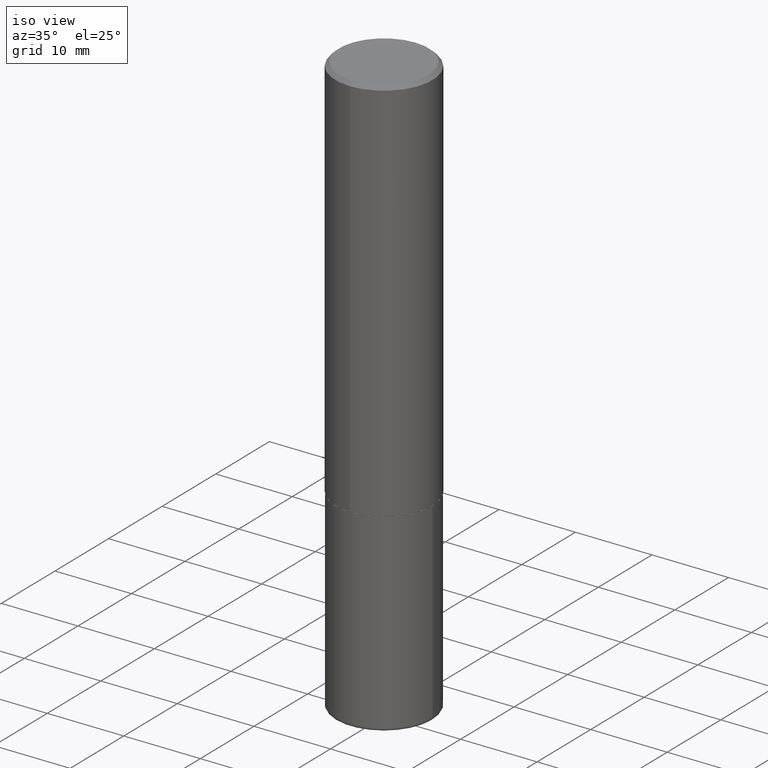
[diagram: clean part render]
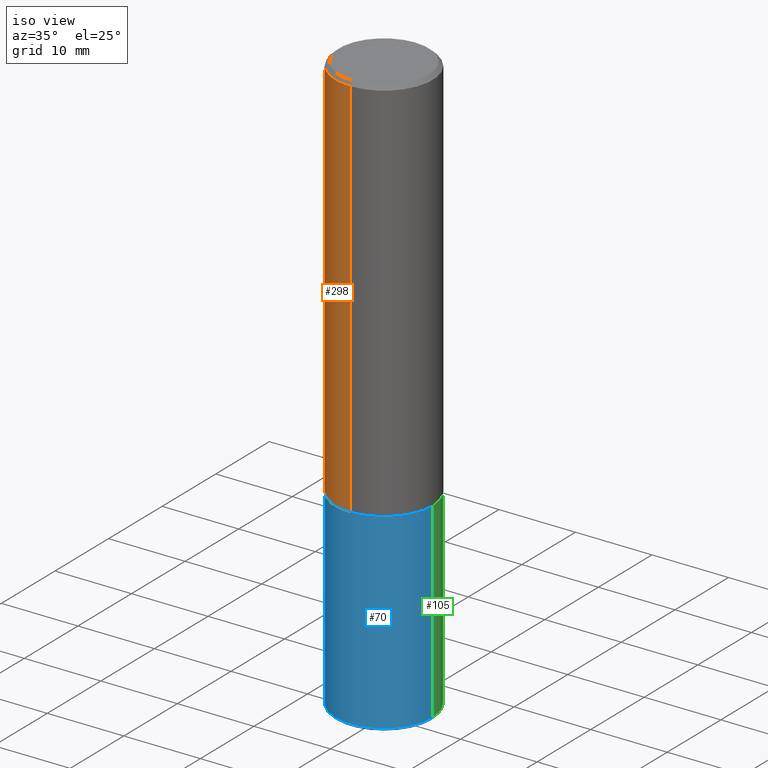
[diagram: same view with three faces highlighted in distinct colors, each labeled with its STEP entity id]
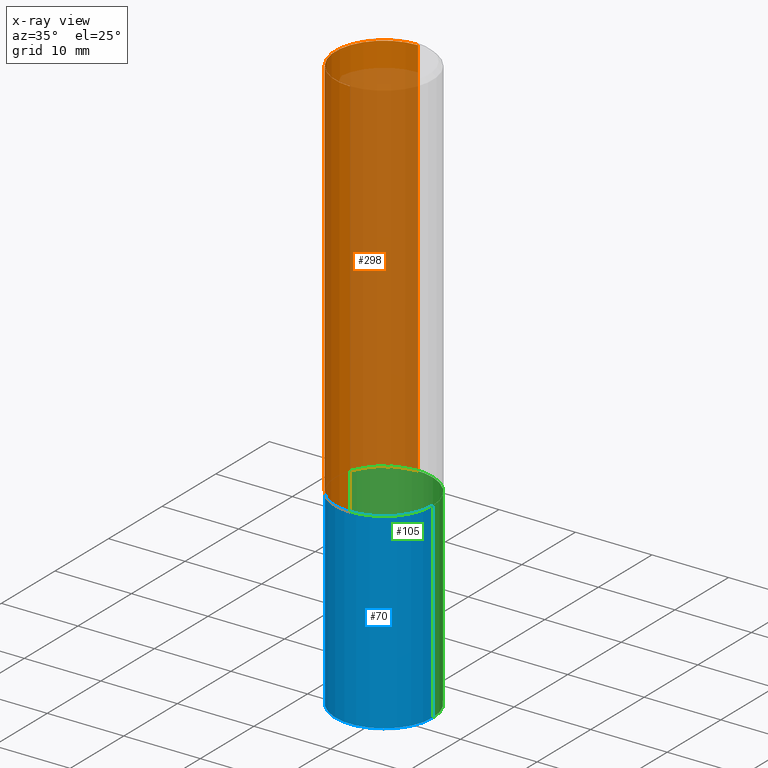
[diagram: x-ray of the same camera — body ghosted, the three highlighted faces saturated]
A machine part, iso view with three faces highlighted in distinct colors.
The next image is the same camera in x-ray (body ghosted, the three faces saturated) — at least one of them is partly hidden behind the body in this view.
Their STEP definitions:

[orange] entity #298 — the highlighted cylindrical surface (partial cylindrical patch) has radius 6.35 mm, axis along (-0, 0, 1).
#12 = ORIENTED_EDGE ( 'NONE', *, *, #339, .F. ) ;
#19 = AXIS2_PLACEMENT_3D ( 'NONE', #128, #397, #96 ) ;
#26 = VECTOR ( 'NONE', #147, 39.37007874015748143 ) ;
#45 = VERTEX_POINT ( 'NONE', #197 ) ;
#53 = CIRCLE ( 'NONE', #114, 0.2500000000000002776 ) ;
#64 = EDGE_CURVE ( 'NONE', #326, #122, #53, .T. ) ;
#72 = VECTOR ( 'NONE', #148, 39.37007874015748143 ) ;
#81 = CARTESIAN_POINT ( 'NONE',  ( -1.745740669421519346E-15, -0.2500000000000072164, -1.998999999999999444 ) ) ;
#85 = FACE_OUTER_BOUND ( 'NONE', #244, .T. ) ;
#86 = EDGE_CURVE ( 'NONE', #326, #322, #284, .T. ) ;
#87 = AXIS2_PLACEMENT_3D ( 'NONE', #109, #275, #412 ) ;
#96 = DIRECTION ( 'NONE',  ( -6.982962677686265922E-15, -1.000000000000000000, 3.483106191921935554E-15 ) ) ;
#109 = CARTESIAN_POINT ( 'NONE',  ( 0.000000000000000000, 0.000000000000000000, 0.000000000000000000 ) ) ;
#114 = AXIS2_PLACEMENT_3D ( 'NONE', #393, #384, #171 ) ;
#116 = EDGE_CURVE ( 'NONE', #122, #45, #338, .T. ) ;
#122 = VERTEX_POINT ( 'NONE', #81 ) ;
#128 = CARTESIAN_POINT ( 'NONE',  ( 4.893184102380074708E-31, -6.979745576130022269E-17, -0.02000000000000005593 ) ) ;
#135 = CARTESIAN_POINT ( 'NONE',  ( 1.776356839400276497E-15, 0.2499999999999933109, -1.999000000000000998 ) ) ;
#147 = DIRECTION ( 'NONE',  ( -2.446592051190030838E-29, 3.489872788065001841E-15, 1.000000000000000000 ) ) ;
#148 = DIRECTION ( 'NONE',  ( -2.446592051190030838E-29, 3.489872788065001841E-15, 1.000000000000000000 ) ) ;
#171 = DIRECTION ( 'NONE',  ( -6.982962677686265922E-15, -1.000000000000000000, 3.278217592397112312E-15 ) ) ;
#197 = CARTESIAN_POINT ( 'NONE',  ( -1.715124499442882299E-15, -0.2500000000000000555, -0.01999999999999918510 ) ) ;
#244 = EDGE_LOOP ( 'NONE', ( #312, #287, #245, #12 ) ) ;
#245 = ORIENTED_EDGE ( 'NONE', *, *, #116, .T. ) ;
#275 = DIRECTION ( 'NONE',  ( -2.446592051190030557E-29, 3.489872788065002235E-15, 1.000000000000000000 ) ) ;
#278 = CARTESIAN_POINT ( 'NONE',  ( -1.745740669421567467E-15, -0.2500000000000001110, 8.724681970162509532E-16 ) ) ;
#284 = LINE ( 'NONE', #300, #72 ) ;
#287 = ORIENTED_EDGE ( 'NONE', *, *, #64, .T. ) ;
#298 = ADVANCED_FACE ( 'NONE', ( #85 ), #315, .T. ) ;
#300 = CARTESIAN_POINT ( 'NONE',  ( 1.776356839400251254E-15, 0.2500000000000001110, -8.724681970162509532E-16 ) ) ;
#312 = ORIENTED_EDGE ( 'NONE', *, *, #86, .F. ) ;
#315 = CYLINDRICAL_SURFACE ( 'NONE', #87, 0.2500000000000001110 ) ;
#322 = VERTEX_POINT ( 'NONE', #368 ) ;
#326 = VERTEX_POINT ( 'NONE', #135 ) ;
#338 = LINE ( 'NONE', #278, #26 ) ;
#339 = EDGE_CURVE ( 'NONE', #322, #45, #395, .T. ) ;
#368 = CARTESIAN_POINT ( 'NONE',  ( 1.745740669421566875E-15, 0.2499999999999999167, -0.02000000000000092676 ) ) ;
#384 = DIRECTION ( 'NONE',  ( -2.446592051190030557E-29, 3.489872788065002235E-15, 1.000000000000000000 ) ) ;
#393 = CARTESIAN_POINT ( 'NONE',  ( 4.890737510328871163E-29, -6.976255703341939282E-15, -1.999000000000000110 ) ) ;
#395 = CIRCLE ( 'NONE', #19, 0.2500000000000000000 ) ;
#397 = DIRECTION ( 'NONE',  ( -2.446592051190030557E-29, 3.489872788065002235E-15, 1.000000000000000000 ) ) ;
#412 = DIRECTION ( 'NONE',  ( -6.982962677686266711E-15, -1.000000000000000000, 3.489872788065002235E-15 ) ) ;

[blue] entity #70 — the highlighted cylindrical surface (partial cylindrical patch) has radius 6.35 mm, axis along (-0, 0, 1).
#18 = DIRECTION ( 'NONE',  ( -2.445468806185136597E-29, 3.491481338843145583E-15, 1.000000000000000000 ) ) ;
#24 = VERTEX_POINT ( 'NONE', #209 ) ;
#28 = CYLINDRICAL_SURFACE ( 'NONE', #378, 0.2500000000000000000 ) ;
#31 = VERTEX_POINT ( 'NONE', #125 ) ;
#34 = AXIS2_PLACEMENT_3D ( 'NONE', #119, #251, #35 ) ;
#35 = DIRECTION ( 'NONE',  ( 1.000000000000000000, -6.982962677686266711E-15, 0.000000000000000000 ) ) ;
#70 = ADVANCED_FACE ( 'NONE', ( #320 ), #28, .T. ) ;
#91 = CARTESIAN_POINT ( 'NONE',  ( 0.2500000000000000000, -1.745740669421566678E-15, 1.219044193948983948E-29 ) ) ;
#108 = VECTOR ( 'NONE', #303, 39.37007874015748143 ) ;
#119 = CARTESIAN_POINT ( 'NONE',  ( 4.890937612370273754E-29, -6.982962677686291954E-15, -2.000000000000000444 ) ) ;
#124 = CARTESIAN_POINT ( 'NONE',  ( 0.000000000000000000, 0.000000000000000000, 0.000000000000000000 ) ) ;
#125 = CARTESIAN_POINT ( 'NONE',  ( 0.2500000000000000555, -1.216781246586835477E-14, -2.984999999999999876 ) ) ;
#127 = VERTEX_POINT ( 'NONE', #343 ) ;
#133 = DIRECTION ( 'NONE',  ( 1.000000000000000000, -6.982962677686270655E-15, 0.000000000000000000 ) ) ;
#161 = DIRECTION ( 'NONE',  ( -2.445468806185136597E-29, 3.491481338843145583E-15, 1.000000000000000000 ) ) ;
#169 = EDGE_LOOP ( 'NONE', ( #229, #294, #268, #172 ) ) ;
#172 = ORIENTED_EDGE ( 'NONE', *, *, #356, .F. ) ;
#173 = EDGE_CURVE ( 'NONE', #31, #373, #389, .T. ) ;
#177 = EDGE_CURVE ( 'NONE', #24, #127, #372, .T. ) ;
#189 = AXIS2_PLACEMENT_3D ( 'NONE', #211, #18, #133 ) ;
#209 = CARTESIAN_POINT ( 'NONE',  ( -0.2500000000000000555, -8.645714957046537626E-15, -2.984999999999999876 ) ) ;
#211 = CARTESIAN_POINT ( 'NONE',  ( 7.299724386462632472E-29, -1.042207179644678967E-14, -2.984999999999999876 ) ) ;
#229 = ORIENTED_EDGE ( 'NONE', *, *, #177, .F. ) ;
#230 = EDGE_CURVE ( 'NONE', #24, #31, #371, .T. ) ;
#251 = DIRECTION ( 'NONE',  ( -2.445468806185136597E-29, 3.491481338843145583E-15, 1.000000000000000000 ) ) ;
#258 = DIRECTION ( 'NONE',  ( -2.445468806185136877E-29, 3.491481338843145188E-15, 1.000000000000000000 ) ) ;
#260 = DIRECTION ( 'NONE',  ( 1.000000000000000000, -6.982962677686266711E-15, 4.876176775795935793E-29 ) ) ;
#268 = ORIENTED_EDGE ( 'NONE', *, *, #173, .T. ) ;
#288 = CARTESIAN_POINT ( 'NONE',  ( 0.2500000000000000000, -8.728703347107858632E-15, -2.000000000000000444 ) ) ;
#294 = ORIENTED_EDGE ( 'NONE', *, *, #230, .T. ) ;
#303 = DIRECTION ( 'NONE',  ( -2.445468806185136877E-29, 3.491481338843145188E-15, 1.000000000000000000 ) ) ;
#320 = FACE_OUTER_BOUND ( 'NONE', #169, .T. ) ;
#343 = CARTESIAN_POINT ( 'NONE',  ( -0.2500000000000000000, -6.926160397666289558E-15, -2.000000000000000444 ) ) ;
#356 = EDGE_CURVE ( 'NONE', #127, #373, #410, .T. ) ;
#370 = CARTESIAN_POINT ( 'NONE',  ( -0.2500000000000000000, 1.776356839400250465E-15, -1.229733772563726445E-29 ) ) ;
#371 = CIRCLE ( 'NONE', #189, 0.2500000000000000000 ) ;
#372 = LINE ( 'NONE', #370, #108 ) ;
#373 = VERTEX_POINT ( 'NONE', #288 ) ;
#378 = AXIS2_PLACEMENT_3D ( 'NONE', #124, #161, #260 ) ;
#389 = LINE ( 'NONE', #91, #405 ) ;
#405 = VECTOR ( 'NONE', #258, 39.37007874015748143 ) ;
#410 = CIRCLE ( 'NONE', #34, 0.2500000000000000000 ) ;

[green] entity #105 — the highlighted cylindrical surface (partial cylindrical patch) has radius 6.35 mm, axis along (-0, 0, 1).
#24 = VERTEX_POINT ( 'NONE', #209 ) ;
#31 = VERTEX_POINT ( 'NONE', #125 ) ;
#43 = DIRECTION ( 'NONE',  ( 1.000000000000000000, -6.982962677686266711E-15, 4.876176775795935793E-29 ) ) ;
#65 = CIRCLE ( 'NONE', #349, 0.2500000000000000000 ) ;
#77 = EDGE_CURVE ( 'NONE', #31, #24, #297, .T. ) ;
#83 = DIRECTION ( 'NONE',  ( -2.445468806185136597E-29, 3.491481338843145583E-15, 1.000000000000000000 ) ) ;
#89 = EDGE_CURVE ( 'NONE', #373, #127, #65, .T. ) ;
#91 = CARTESIAN_POINT ( 'NONE',  ( 0.2500000000000000000, -1.745740669421566678E-15, 1.219044193948983948E-29 ) ) ;
#105 = ADVANCED_FACE ( 'NONE', ( #307 ), #112, .T. ) ;
#108 = VECTOR ( 'NONE', #303, 39.37007874015748143 ) ;
#112 = CYLINDRICAL_SURFACE ( 'NONE', #416, 0.2500000000000000000 ) ;
#113 = ORIENTED_EDGE ( 'NONE', *, *, #173, .F. ) ;
#125 = CARTESIAN_POINT ( 'NONE',  ( 0.2500000000000000555, -1.216781246586835477E-14, -2.984999999999999876 ) ) ;
#127 = VERTEX_POINT ( 'NONE', #343 ) ;
#154 = DIRECTION ( 'NONE',  ( 1.000000000000000000, -6.982962677686266711E-15, 0.000000000000000000 ) ) ;
#168 = ORIENTED_EDGE ( 'NONE', *, *, #89, .F. ) ;
#173 = EDGE_CURVE ( 'NONE', #31, #373, #389, .T. ) ;
#174 = CARTESIAN_POINT ( 'NONE',  ( 4.890937612370273754E-29, -6.982962677686291954E-15, -2.000000000000000444 ) ) ;
#177 = EDGE_CURVE ( 'NONE', #24, #127, #372, .T. ) ;
#195 = AXIS2_PLACEMENT_3D ( 'NONE', #396, #219, #282 ) ;
#209 = CARTESIAN_POINT ( 'NONE',  ( -0.2500000000000000555, -8.645714957046537626E-15, -2.984999999999999876 ) ) ;
#219 = DIRECTION ( 'NONE',  ( -2.445468806185136597E-29, 3.491481338843145583E-15, 1.000000000000000000 ) ) ;
#242 = ORIENTED_EDGE ( 'NONE', *, *, #77, .T. ) ;
#258 = DIRECTION ( 'NONE',  ( -2.445468806185136877E-29, 3.491481338843145188E-15, 1.000000000000000000 ) ) ;
#264 = EDGE_LOOP ( 'NONE', ( #242, #379, #168, #113 ) ) ;
#282 = DIRECTION ( 'NONE',  ( 1.000000000000000000, -6.982962677686270655E-15, 0.000000000000000000 ) ) ;
#288 = CARTESIAN_POINT ( 'NONE',  ( 0.2500000000000000000, -8.728703347107858632E-15, -2.000000000000000444 ) ) ;
#297 = CIRCLE ( 'NONE', #195, 0.2500000000000000000 ) ;
#303 = DIRECTION ( 'NONE',  ( -2.445468806185136877E-29, 3.491481338843145188E-15, 1.000000000000000000 ) ) ;
#307 = FACE_OUTER_BOUND ( 'NONE', #264, .T. ) ;
#343 = CARTESIAN_POINT ( 'NONE',  ( -0.2500000000000000000, -6.926160397666289558E-15, -2.000000000000000444 ) ) ;
#349 = AXIS2_PLACEMENT_3D ( 'NONE', #174, #407, #154 ) ;
#370 = CARTESIAN_POINT ( 'NONE',  ( -0.2500000000000000000, 1.776356839400250465E-15, -1.229733772563726445E-29 ) ) ;
#372 = LINE ( 'NONE', #370, #108 ) ;
#373 = VERTEX_POINT ( 'NONE', #288 ) ;
#376 = CARTESIAN_POINT ( 'NONE',  ( 0.000000000000000000, 0.000000000000000000, 0.000000000000000000 ) ) ;
#379 = ORIENTED_EDGE ( 'NONE', *, *, #177, .T. ) ;
#389 = LINE ( 'NONE', #91, #405 ) ;
#396 = CARTESIAN_POINT ( 'NONE',  ( 7.299724386462632472E-29, -1.042207179644678967E-14, -2.984999999999999876 ) ) ;
#405 = VECTOR ( 'NONE', #258, 39.37007874015748143 ) ;
#407 = DIRECTION ( 'NONE',  ( -2.445468806185136597E-29, 3.491481338843145583E-15, 1.000000000000000000 ) ) ;
#416 = AXIS2_PLACEMENT_3D ( 'NONE', #376, #83, #43 ) ;